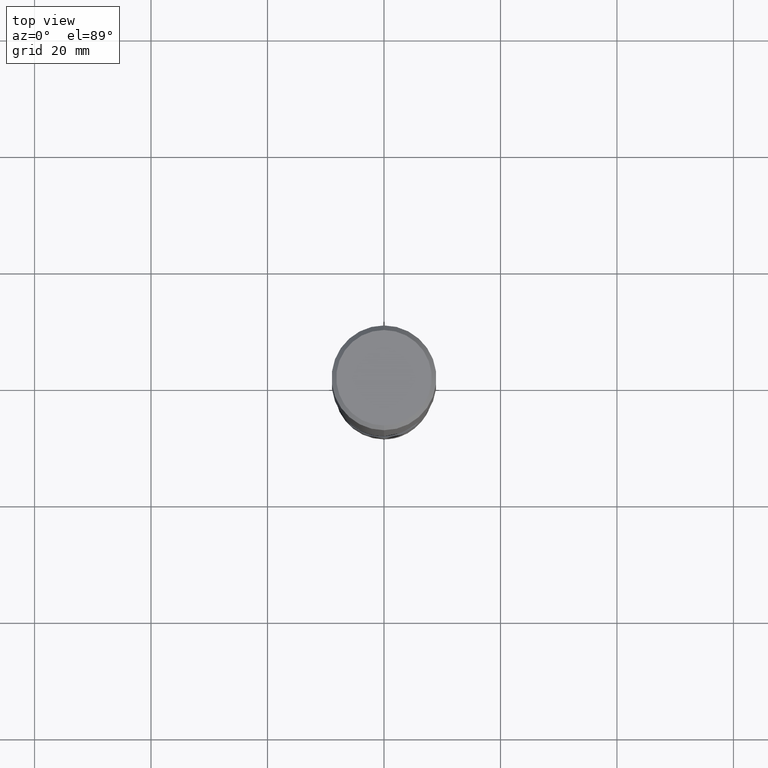
[diagram: clean part render]
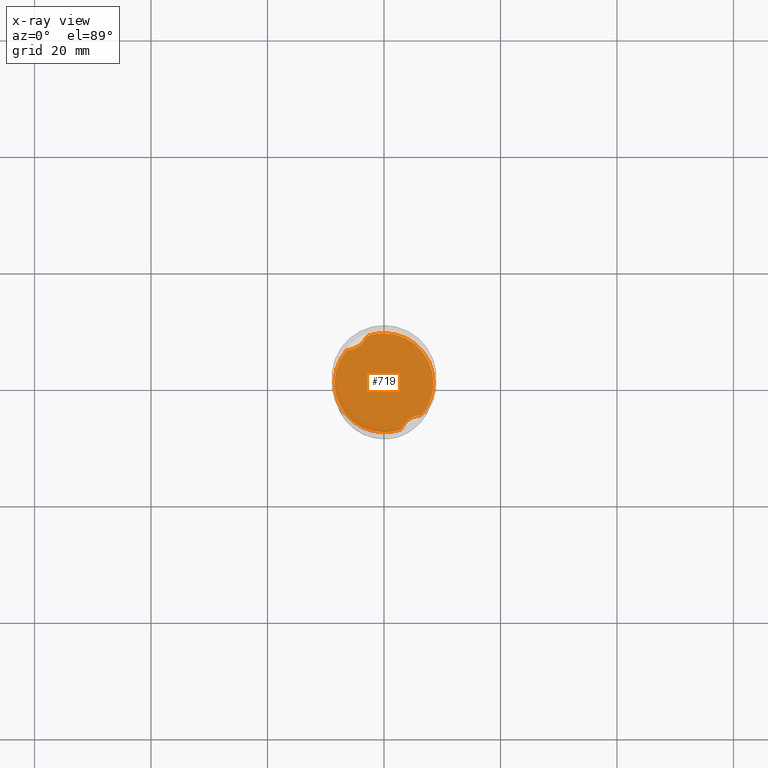
[diagram: x-ray — body ghosted, one internal face saturated and labeled with its STEP entity id]
A machine part, top view, then the same camera in x-ray: the body is ghosted and one INTERNAL B-rep face — a face not visible from any outside direction — is saturated and labeled: STEP entity #719.
In plain terms, the highlighted planar face has unit normal (-0, 0, 1).
Its self-contained STEP definition (entity closure, byte-faithful):
#381=VERTEX_POINT('',#900);
#421=VERTEX_POINT('',#943);
#479=VERTEX_POINT('',#1009);
#553=VERTEX_POINT('',#1091);
#571=EDGE_CURVE('',#381,#421,#1110,.T.);
#589=EDGE_CURVE('',#553,#615,#1128,.T.);
#615=VERTEX_POINT('',#1156);
#619=EDGE_CURVE('',#553,#479,#1161,.T.);
#685=EDGE_CURVE('',#615,#421,#1232,.T.);
#697=EDGE_CURVE('',#757,#479,#1246,.T.);
#719=ADVANCED_FACE('',(#1269),#1270,.T.);
#727=EDGE_CURVE('',#381,#757,#1278,.T.);
#757=VERTEX_POINT('',#1309);
#900=CARTESIAN_POINT('',(2.89210082490991,-7.99275001664355,-50.0));
#943=CARTESIAN_POINT('',(6.44231699010143,-5.54480403702876,-50.0));
#1009=CARTESIAN_POINT('',(-6.44231699010144,5.54480403702876,-50.0));
#1091=CARTESIAN_POINT('',(-2.8921008249099,7.99275001664355,-50.0));
#1110=B_SPLINE_CURVE_WITH_KNOTS('',3,(#4421,#4422,#4423,#4424,#4425,#4426,#4427,#4428,#4429,#4430),.UNSPECIFIED.,.F.,.F.,(4,2,2,2,4),(0.0,1.84046416010449,3.52597582610623,5.23045837807026,7.30104064726465),.UNSPECIFIED.);
#1128=CIRCLE('',#4460,8.4999);
#1156=CARTESIAN_POINT('',(-1.03745773833883E-015,8.4999,-50.0));
#1161=B_SPLINE_CURVE_WITH_KNOTS('',3,(#4555,#4556,#4557,#4558,#4559,#4560,#4561,#4562,#4563,#4564),.UNSPECIFIED.,.F.,.F.,(4,2,2,2,4),(0.0,1.84046416010429,3.52597582610569,5.23045837806942,7.30104064726369),.UNSPECIFIED.);
#1232=CIRCLE('',#4825,8.4999);
#1246=CIRCLE('',#5085,8.4999);
#1269=FACE_OUTER_BOUND('',#5337,.T.);
#1270=PLANE('',#5338);
#1278=CIRCLE('',#5349,8.4999);
#1309=CARTESIAN_POINT('',(1.0374577401333E-015,-8.4999,-50.0));
#4421=CARTESIAN_POINT('',(2.66327865988871,-8.5499,-50.0));
#4422=CARTESIAN_POINT('',(2.86149558573942,-7.96931611981406,-50.0));
#4423=CARTESIAN_POINT('',(3.1618157308007,-7.43344177622909,-49.999999999978));
#4424=CARTESIAN_POINT('',(3.93873148401871,-6.5548722881126,-49.999999999978));
#4425=CARTESIAN_POINT('',(4.38494984181178,-6.21532766769915,-50.0000000000012));
#4426=CARTESIAN_POINT('',(5.39882340800126,-5.72287512631277,-50.0000000000012));
#4427=CARTESIAN_POINT('',(5.94968494668539,-5.58077485231738,-50.0000000000002));
#4428=CARTESIAN_POINT('',(7.20291081496964,-5.48782507693009,-50.0000000000002));
#4429=CARTESIAN_POINT('',(7.89285928011487,-5.58549339197759,-50.0));
#4430=CARTESIAN_POINT('',(8.5499,-5.80048967445236,-50.0));
#4460=AXIS2_PLACEMENT_3D('',#5967,#5968,#5969);
#4555=CARTESIAN_POINT('',(-2.6632786598887,8.5499,-50.0));
#4556=CARTESIAN_POINT('',(-2.86149558573939,7.96931611981413,-50.0));
#4557=CARTESIAN_POINT('',(-3.16181573080066,7.4334417762291,-49.999999999978));
#4558=CARTESIAN_POINT('',(-3.93873148401868,6.55487228811261,-49.999999999978));
#4559=CARTESIAN_POINT('',(-4.38494984181175,6.21532766769914,-50.0000000000013));
#4560=CARTESIAN_POINT('',(-5.39882340800127,5.72287512631274,-50.0000000000013));
#4561=CARTESIAN_POINT('',(-5.94968494668544,5.58077485231737,-50.0000000000002));
#4562=CARTESIAN_POINT('',(-7.2029108149696,5.48782507693008,-50.0000000000002));
#4563=CARTESIAN_POINT('',(-7.89285928011483,5.58549339197757,-50.0));
#4564=CARTESIAN_POINT('',(-8.5499,5.80048967445236,-50.0));
#4825=AXIS2_PLACEMENT_3D('',#6064,#6065,#6066);
#5085=AXIS2_PLACEMENT_3D('',#6082,#6083,#6084);
#5337=EDGE_LOOP('',(#6101,#6102,#6103,#6104,#6105,#6106));
#5338=AXIS2_PLACEMENT_3D('',#6107,#6108,#6109);
#5349=AXIS2_PLACEMENT_3D('',#6111,#6112,#6113);
#5967=CARTESIAN_POINT('',(0.0,0.0,-50.0));
#5968=DIRECTION('',(0.0,0.0,-1.0));
#5969=DIRECTION('',(0.0,1.0,0.0));
#6064=CARTESIAN_POINT('',(0.0,0.0,-50.0));
#6065=DIRECTION('',(0.0,0.0,-1.0));
#6066=DIRECTION('',(0.0,1.0,0.0));
#6082=CARTESIAN_POINT('',(0.0,0.0,-50.0));
#6083=DIRECTION('',(0.0,0.0,-1.0));
#6084=DIRECTION('',(0.0,1.0,0.0));
#6101=ORIENTED_EDGE('',*,*,#571,.T.);
#6102=ORIENTED_EDGE('',*,*,#685,.F.);
#6103=ORIENTED_EDGE('',*,*,#589,.F.);
#6104=ORIENTED_EDGE('',*,*,#619,.T.);
#6105=ORIENTED_EDGE('',*,*,#697,.F.);
#6106=ORIENTED_EDGE('',*,*,#727,.F.);
#6107=CARTESIAN_POINT('',(0.0,4.24995,-50.0));
#6108=DIRECTION('',(-0.0,0.0,1.0));
#6109=DIRECTION('',(0.0,-1.0,0.0));
#6111=CARTESIAN_POINT('',(0.0,0.0,-50.0));
#6112=DIRECTION('',(0.0,0.0,-1.0));
#6113=DIRECTION('',(0.0,1.0,0.0));